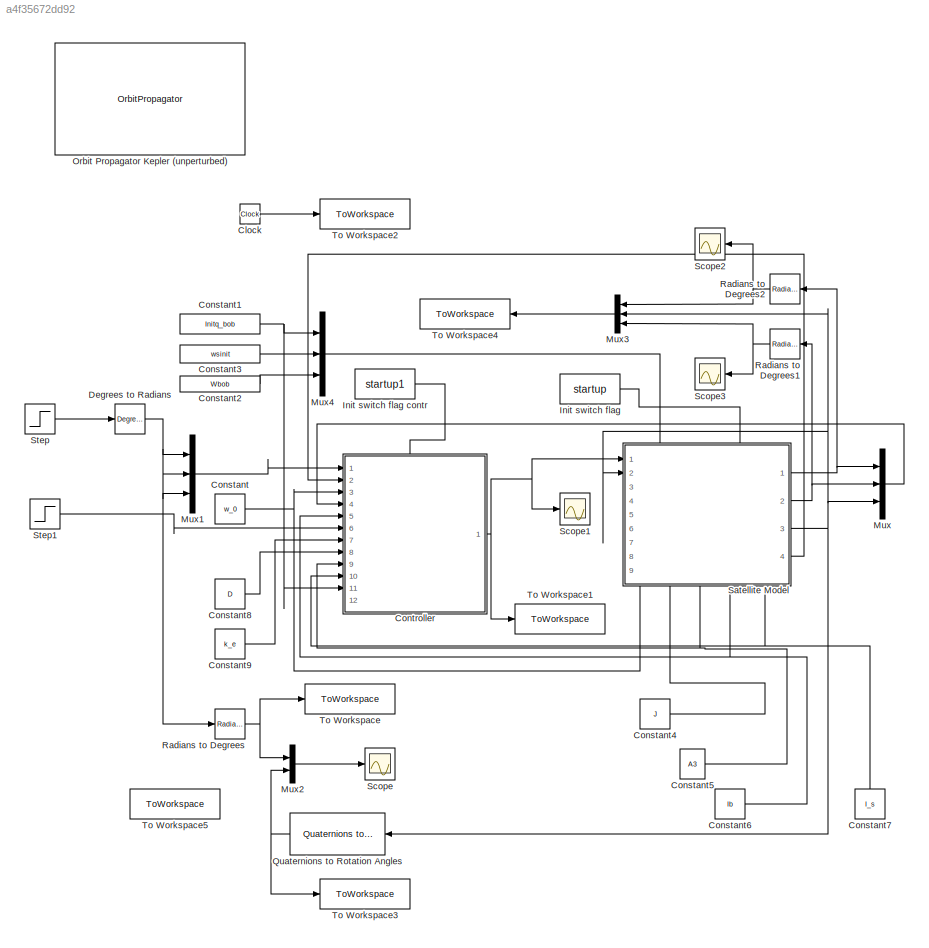
MODEL slx_a4f35672dd92
KIND model
CONFIG AbsTol = auto
CONFIG EnableMultiTasking = off
CONFIG FixedStep = auto
CONFIG MaxStep = auto
CONFIG MinStep = auto
CONFIG RelTol = 1e-3
CONFIG SampleTimeConstraint = Unconstrained
CONFIG SolverName = ode23t
CONFIG StartTime = 0.0
CONFIG StopTime = 200
BLOCK [Clock] Clock
BLOCK [Constant] Constant
  Value = w_0
BLOCK [Constant] Constant1
  Value = Initq_bob
BLOCK [Constant] Constant2
  Value = Wbob
BLOCK [Constant] Constant3
  Value = wsinit
BLOCK [Constant] Constant4
  Value = J
BLOCK [Constant] Constant5
  Value = A3
BLOCK [Constant] Constant6
  Value = Ib
BLOCK [Constant] Constant7
  NameLocation = right
  Value = I_s
BLOCK [Constant] Constant8
  Value = D
BLOCK [Constant] Constant9
  Value = k_e
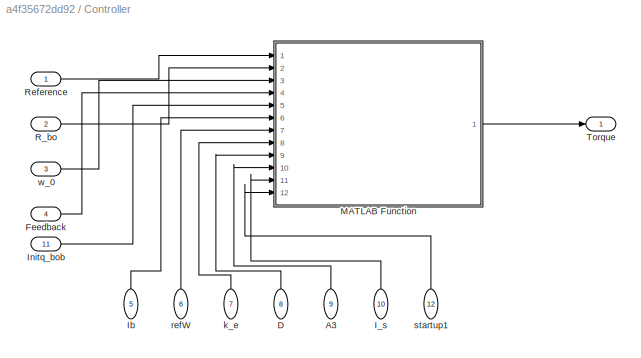
BLOCK [SubSystem] Controller
  PortSchema = {"entries":[{"content":{"sides":[{"content":{"connectorIds":["In1","In2","In3","In4","In5","In6","In7","In8","In9","In10","In11"]},"type":"ConnectorPlacement.EquallySpacedRectSide","uuid":"5590ad9e-04f9-4af7-9b4f-f6478cf6a2ce"},{"content":{"connectorIds":["Out1"],"side":"RIGHT"},"type":"ConnectorPlacement.EquallySpacedRectSide","uuid":"ce5d6df3-1bbd-4344-9f78-59de01b16bbe"},{"content":{"connectorI...<+308ch>
  Ports = [12, 1]
  RequestExecContextInheritance = off
BLOCK [Inport] Controller/A3
  NameLocation = right
  Port = 9
BLOCK [Inport] Controller/D
  NameLocation = right
  Port = 8
BLOCK [Inport] Controller/Feedback
  Port = 4
BLOCK [Inport] Controller/I_s
  NameLocation = right
  Port = 10
BLOCK [Inport] Controller/Ib
  NameLocation = right
  Port = 5
BLOCK [Inport] Controller/Initq_bob
  Port = 11
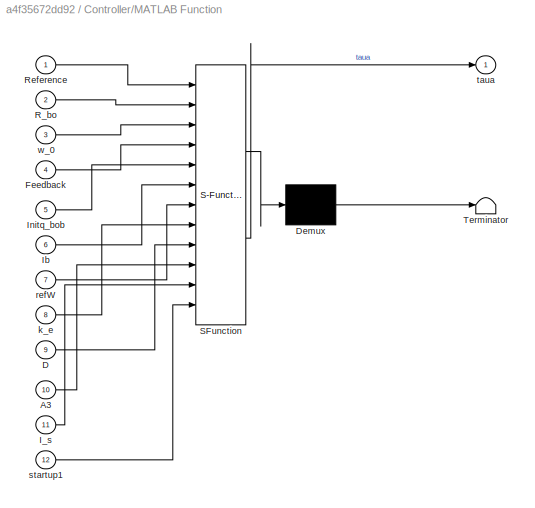
BLOCK [SubSystem] Controller/MATLAB Function
  ErrorFcn = Stateflow.Translate.translate
  PermitHierarchicalResolution = ExplicitOnly
  Ports = [12, 1]
  RequestExecContextInheritance = off
  SFBlockType = MATLAB Function
  TreatAsAtomicUnit = on
BLOCK [Demux] Controller/MATLAB Function/ Demux 
  Outputs = 1
  Ports = [1, 1]
BLOCK [S-Function] Controller/MATLAB Function/ SFunction 
  EnableBusSupport = on
  FunctionName = sf_sfun
  PortCounts = [12 2]
  Ports = [12, 2]
  SFcnIsStateOwnerBlock = off
  SFunctionDeploymentMode = off
  Tag = Stateflow S-Function 2
BLOCK [Terminator] Controller/MATLAB Function/ Terminator 
BLOCK [Inport] Controller/MATLAB Function/A3
  Port = 10
BLOCK [Inport] Controller/MATLAB Function/D
  Port = 9
BLOCK [Inport] Controller/MATLAB Function/Feedback
  Port = 4
BLOCK [Inport] Controller/MATLAB Function/I_s
  Port = 11
BLOCK [Inport] Controller/MATLAB Function/Ib
  Port = 6
BLOCK [Inport] Controller/MATLAB Function/Initq_bob
  Port = 5
BLOCK [Inport] Controller/MATLAB Function/R_bo
  Port = 2
BLOCK [Inport] Controller/MATLAB Function/Reference
BLOCK [Inport] Controller/MATLAB Function/k_e
  Port = 8
BLOCK [Inport] Controller/MATLAB Function/refW
  Port = 7
BLOCK [Inport] Controller/MATLAB Function/startup1
  Port = 12
BLOCK [Outport] Controller/MATLAB Function/taua
BLOCK [Inport] Controller/MATLAB Function/w_0
  Port = 3
BLOCK [Inport] Controller/R_bo
  Port = 2
BLOCK [Inport] Controller/Reference
BLOCK [Outport] Controller/Torque
BLOCK [Inport] Controller/k_e
  NameLocation = right
  Port = 7
BLOCK [Inport] Controller/refW
  NameLocation = right
  Port = 6
BLOCK [Inport] Controller/startup1
  NameLocation = right
  Port = 12
BLOCK [Inport] Controller/w_0
  Port = 3
BLOCK [Reference] Degrees to Radians  REF=simulink_extras/Transformations/Degrees to
Radians
  Ports = [1, 1]
  SourceBlock = simulink_extras/Transformations/Degrees to\nRadians
  SourceProductBaseCode = SL
  SourceType = DegreesToRadians
BLOCK [Constant] Init switch flag
  Value = startup
BLOCK [Constant] Init switch flag contr
  Value = startup1
BLOCK [Mux] Mux
  DisplayOption = bar
  Inputs = 3
  Ports = [3, 1]
BLOCK [Mux] Mux1
  DisplayOption = bar
  Inputs = 3
  Ports = [3, 1]
BLOCK [Mux] Mux2
  DisplayOption = bar
  Inputs = 2
  Ports = [2, 1]
BLOCK [Mux] Mux3
  DisplayOption = bar
  Inputs = 3
  NameLocation = top
  Ports = [3, 1]
BLOCK [Mux] Mux4
  DisplayOption = bar
  Inputs = 3
  Ports = [3, 1]
BLOCK [OrbitPropagator] Orbit Propagator Kepler (unperturbed)
  Ports = [0, 3]
  customJ2 = 1.0826269e-03
  customMu = 4.305e13
  customOmega = 4.06125949e-3
  customR = 3396200
  fixedPosition = [-4142689.0 -2676864.7 -4669861.6]
  fixedVelocity = [1452.7 -6720.7 2568.1]
  inertialPosition = [3649700.0 3308200.0 -4676600.0]
  inertialVelocity = [-2750.8 6666.4 2573.4]
BLOCK [Reference] Quaternions to Rotation Angles  REF=sharedtransform/Quaternions to Rotation Angles
  AttributesFormatString = Rotation Order: %<rotationOrder>
  NameLocation = top
  Ports = [1, 1]
  SourceBlock = sharedtransform/Quaternions to Rotation Angles
  SourceProductBaseCode = AE,PW,DR,MT,UV,VE
  SourceType = Quat2Ang
BLOCK [Reference] Radians to Degrees  REF=simulink_extras/Transformations/Radians
to Degrees
  Ports = [1, 1]
  SourceBlock = simulink_extras/Transformations/Radians\nto Degrees
  SourceProductBaseCode = SL
  SourceType = RadiansToDegrees
BLOCK [Reference] Radians to Degrees1  REF=simulink_extras/Transformations/Radians
to Degrees
  NameLocation = top
  Ports = [1, 1]
  SourceBlock = simulink_extras/Transformations/Radians\nto Degrees
  SourceProductBaseCode = SL
  SourceType = RadiansToDegrees
BLOCK [Reference] Radians to Degrees2  REF=simulink_extras/Transformations/Radians
to Degrees
  NameLocation = top
  Ports = [1, 1]
  SourceBlock = simulink_extras/Transformations/Radians\nto Degrees
  SourceProductBaseCode = SL
  SourceType = RadiansToDegrees
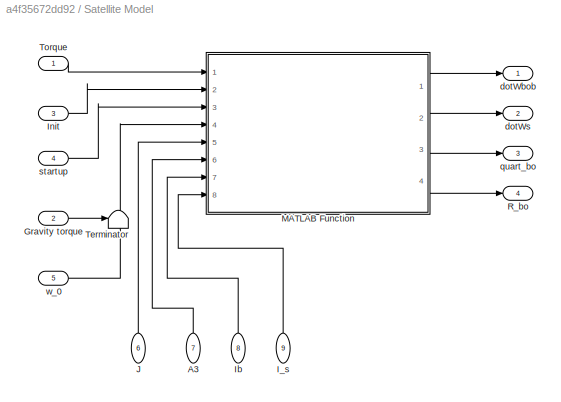
BLOCK [SubSystem] Satellite Model
  PortSchema = {"entries":[{"content":{"sides":[{"content":{"connectorIds":["In1","In2"]},"type":"ConnectorPlacement.EquallySpacedRectSide","uuid":"ed600d3a-bd99-4e9e-b304-9a2a6bbc0ab4"},{"content":{"connectorIds":["Out1","Out2","Out3","Out4"],"side":"RIGHT"},"type":"ConnectorPlacement.EquallySpacedRectSide","uuid":"702358d8-c789-483d-bed3-4e4bb7a14f25"},{"content":{"connectorIds":["In3","In4"],"side":"TOP"},"ty...<+451ch>
  Ports = [9, 4]
  RequestExecContextInheritance = off
BLOCK [Inport] Satellite Model/A3
  NameLocation = right
  Port = 7
BLOCK [Inport] Satellite Model/Gravity torque
  Port = 2
BLOCK [Inport] Satellite Model/I_s
  NameLocation = right
  Port = 9
BLOCK [Inport] Satellite Model/Ib
  NameLocation = right
  Port = 8
BLOCK [Inport] Satellite Model/Init
  Port = 3
BLOCK [Inport] Satellite Model/J
  NameLocation = right
  Port = 6
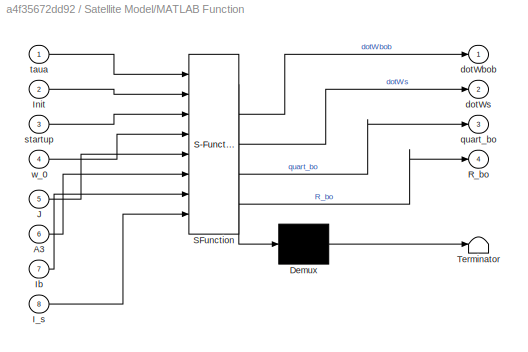
BLOCK [SubSystem] Satellite Model/MATLAB Function
  ErrorFcn = Stateflow.Translate.translate
  PermitHierarchicalResolution = ExplicitOnly
  Ports = [8, 4]
  RequestExecContextInheritance = off
  SFBlockType = MATLAB Function
  TreatAsAtomicUnit = on
BLOCK [Demux] Satellite Model/MATLAB Function/ Demux 
  Outputs = 1
  Ports = [1, 1]
BLOCK [S-Function] Satellite Model/MATLAB Function/ SFunction 
  EnableBusSupport = on
  FunctionName = sf_sfun
  PortCounts = [8 5]
  Ports = [8, 5]
  SFcnIsStateOwnerBlock = off
  SFunctionDeploymentMode = off
  Tag = Stateflow S-Function 1
BLOCK [Terminator] Satellite Model/MATLAB Function/ Terminator 
BLOCK [Inport] Satellite Model/MATLAB Function/A3
  Port = 6
BLOCK [Inport] Satellite Model/MATLAB Function/I_s
  Port = 8
BLOCK [Inport] Satellite Model/MATLAB Function/Ib
  Port = 7
BLOCK [Inport] Satellite Model/MATLAB Function/Init
  Port = 2
BLOCK [Inport] Satellite Model/MATLAB Function/J
  Port = 5
BLOCK [Outport] Satellite Model/MATLAB Function/R_bo
  Port = 4
BLOCK [Outport] Satellite Model/MATLAB Function/dotWbob
BLOCK [Outport] Satellite Model/MATLAB Function/dotWs
  Port = 2
BLOCK [Outport] Satellite Model/MATLAB Function/quart_bo
  Port = 3
BLOCK [Inport] Satellite Model/MATLAB Function/startup
  Port = 3
BLOCK [Inport] Satellite Model/MATLAB Function/taua
BLOCK [Inport] Satellite Model/MATLAB Function/w_0
  Port = 4
BLOCK [Outport] Satellite Model/R_bo
  Port = 4
BLOCK [Terminator] Satellite Model/Terminator
BLOCK [Inport] Satellite Model/Torque
BLOCK [Outport] Satellite Model/dotWbob
BLOCK [Outport] Satellite Model/dotWs
  Port = 2
BLOCK [Outport] Satellite Model/quart_bo
  Port = 3
BLOCK [Inport] Satellite Model/startup
  Port = 4
BLOCK [Inport] Satellite Model/w_0
  Port = 5
BLOCK [Scope] Scope
  Floating = off
  NumInputPorts = 1
  Ports = [1]
  ScopeSpecificationString = Simulink.scopes.TimeScopeBlockCfg('CurrentConfiguration', extmgr.ConfigurationSet(extmgr.Configuration('Core','General UI',true),extmgr.Configuration('Core','Source UI',true),extmgr.Configuration('Sources','WiredSimulink',true),extmgr.Configuration('Visuals','Time Domain',true),extmgr.Configuration('Tools','Plot Navigation',true),extmgr.Configuration('Tools','Measurements',true)),'Version','2021b'...<+1ch>
BLOCK [Scope] Scope1
  Floating = off
  NumInputPorts = 1
  Ports = [1]
  ScopeSpecificationString = Simulink.scopes.TimeScopeBlockCfg('CurrentConfiguration', extmgr.ConfigurationSet(extmgr.Configuration('Core','General UI',true),extmgr.Configuration('Core','Source UI',true),extmgr.Configuration('Sources','WiredSimulink',true,'DataLoggingVariableName','ScopeData1'),extmgr.Configuration('Visuals','Time Domain',true),extmgr.Configuration('Tools','Plot Navigation',true),extmgr.Configuration('Tools',...<+58ch>
BLOCK [Scope] Scope2
  Floating = off
  NameLocation = top
  NumInputPorts = 1
  Ports = [1]
  ScopeSpecificationString = Simulink.scopes.TimeScopeBlockCfg('CurrentConfiguration', extmgr.ConfigurationSet(extmgr.Configuration('Core','General UI',true),extmgr.Configuration('Core','Source UI',true),extmgr.Configuration('Sources','WiredSimulink',true,'DataLoggingVariableName','ScopeData2'),extmgr.Configuration('Visuals','Time Domain',true),extmgr.Configuration('Tools','Plot Navigation',true),extmgr.Configuration('Tools',...<+40ch>
BLOCK [Scope] Scope3
  Floating = off
  NameLocation = top
  NumInputPorts = 1
  Ports = [1]
  ScopeSpecificationString = Simulink.scopes.TimeScopeBlockCfg('CurrentConfiguration', extmgr.ConfigurationSet(extmgr.Configuration('Core','General UI',true),extmgr.Configuration('Core','Source UI',true),extmgr.Configuration('Sources','WiredSimulink',true,'DataLoggingVariableName','ScopeData3'),extmgr.Configuration('Visuals','Time Domain',true),extmgr.Configuration('Tools','Plot Navigation',true),extmgr.Configuration('Tools',...<+40ch>
BLOCK [Step] Step
  After = 60
  SampleTime = 0
  Time = 0
BLOCK [Step] Step1
  After = [1; 2; 3]
  SampleTime = 0
BLOCK [ToWorkspace] To Workspace
  FixptAsFi = on
  MaxDataPoints = inf
  Ports = [1]
  SampleTime = -1
  VariableName = reference
BLOCK [ToWorkspace] To Workspace1
  FixptAsFi = on
  MaxDataPoints = inf
  Ports = [1]
  SampleTime = -1
  VariableName = Torque
BLOCK [ToWorkspace] To Workspace2
  FixptAsFi = on
  MaxDataPoints = inf
  Ports = [1]
  SampleTime = -1
  VariableName = time
BLOCK [ToWorkspace] To Workspace3
  FixptAsFi = on
  MaxDataPoints = inf
  Ports = [1]
  SampleTime = -1
  VariableName = EulerAngles
BLOCK [ToWorkspace] To Workspace4
  FixptAsFi = on
  MaxDataPoints = inf
  NameLocation = top
  Ports = [1]
  SampleTime = -1
  SaveFormat = Timeseries
  VariableName = SatelliteStates
BLOCK [ToWorkspace] To Workspace5
  FixptAsFi = on
  MaxDataPoints = inf
  Ports = [1]
  SampleTime = -1
  SaveFormat = Timeseries
  VariableName = simout
LINE Clock:1 -> To Workspace2:1
NET Constant1:1 -> Controller:11, Mux4:1
LINE Constant2:1 -> Mux4:3
LINE Constant3:1 -> Mux4:2
LINE Constant4:1 -> Satellite Model:6
NET Constant5:1 -> Controller:9, Satellite Model:7
NET Constant6:1 -> Controller:5, Satellite Model:8
NET Constant7:1 -> Controller:10, Satellite Model:9
LINE Constant8:1 -> Controller:8
LINE Constant9:1 -> Controller:7
NET Constant:1 -> Controller:3, Satellite Model:5
LINE Controller/A3:1 -> Controller/MATLAB Function:10
LINE Controller/D:1 -> Controller/MATLAB Function:9
LINE Controller/Feedback:1 -> Controller/MATLAB Function:4
LINE Controller/I_s:1 -> Controller/MATLAB Function:11
LINE Controller/Ib:1 -> Controller/MATLAB Function:6
LINE Controller/Initq_bob:1 -> Controller/MATLAB Function:5
LINE Controller/MATLAB Function:1 -> Controller/Torque:1
LINE Controller/R_bo:1 -> Controller/MATLAB Function:2
LINE Controller/Reference:1 -> Controller/MATLAB Function:1
LINE Controller/k_e:1 -> Controller/MATLAB Function:8
LINE Controller/refW:1 -> Controller/MATLAB Function:7
LINE Controller/startup1:1 -> Controller/MATLAB Function:12
LINE Controller/w_0:1 -> Controller/MATLAB Function:3
NET Controller:1 -> Satellite Model:1, Scope1:1, To Workspace1:1
NET Degrees to Radians:1 -> Mux1:1, Mux1:2, Mux1:3, Radians to Degrees:1
LINE Init switch flag contr:1 -> Controller:12
LINE Init switch flag:1 -> Satellite Model:4
LINE Mux1:1 -> Controller:1
LINE Mux2:1 -> Scope:1
LINE Mux3:1 -> To Workspace4:1
LINE Mux4:1 -> Satellite Model:3
LINE Mux:1 -> Controller:4
NET Quaternions to Rotation Angles:1 -> Mux2:2, To Workspace3:1
NET Radians to Degrees1:1 -> Mux3:3, Scope3:1
NET Radians to Degrees2:1 -> Mux3:1, Scope2:1
NET Radians to Degrees:1 -> Mux2:1, To Workspace:1
LINE Satellite Model/A3:1 -> Satellite Model/MATLAB Function:6
LINE Satellite Model/Gravity torque:1 -> Satellite Model/Terminator:1
LINE Satellite Model/I_s:1 -> Satellite Model/MATLAB Function:8
LINE Satellite Model/Ib:1 -> Satellite Model/MATLAB Function:7
LINE Satellite Model/Init:1 -> Satellite Model/MATLAB Function:2
LINE Satellite Model/J:1 -> Satellite Model/MATLAB Function:5
LINE Satellite Model/MATLAB Function:1 -> Satellite Model/dotWbob:1
LINE Satellite Model/MATLAB Function:2 -> Satellite Model/dotWs:1
LINE Satellite Model/MATLAB Function:3 -> Satellite Model/quart_bo:1
LINE Satellite Model/MATLAB Function:4 -> Satellite Model/R_bo:1
LINE Satellite Model/Torque:1 -> Satellite Model/MATLAB Function:1
LINE Satellite Model/startup:1 -> Satellite Model/MATLAB Function:3
LINE Satellite Model/w_0:1 -> Satellite Model/MATLAB Function:4
NET Satellite Model:1 -> Mux:1, Radians to Degrees2:1
NET Satellite Model:2 -> Mux:2, Radians to Degrees1:1
NET Satellite Model:3 -> Mux3:2, Mux:3, Quaternions to Rotation Angles:1, Satellite Model:2
LINE Satellite Model:4 -> Controller:2
LINE Step1:1 -> Controller:6
LINE Step:1 -> Degrees to Radians:1
note: NET lines group one-source signal fan-out (src -> all destinations, sorted); 1:1 wires keep LINE
CHART Satellite Model/MATLAB Function states=1 transitions=1
  STATE_LABEL 'eML_blk_kernel()'
  STATE_LABEL 'SCRIPT:\nfunction [dotWbob,dotWs,quart_bo,R_bo] = SystemNonlinearModel(taua,Init,startup,w_0,J,A3,Ib,I_s)\n% Function that calculates the system states\n%   This system function receives initializing input parameters and control\n%   signals and calculates the components of the ordinal differential\n%   equations of each state.\n\nquaternions = zeros(1,4);\nAngVel = zeros(3,1);\nWAngVel = zeros(3,1);\nInitq...<+2343ch>'
CHART Controller/MATLAB Function states=1 transitions=1
  STATE_LABEL 'eML_blk_kernel()'
  STATE_LABEL 'SCRIPT:\nfunction taua = LyapunovController1(Reference, R_bo, w_0, Feedback, Initq_bob, Ib, refW, k_e, D, A3, I_s, startup1)\n\n%Lyapunov controller function \n%   Control strategy based on a Lyapunov function candidate. The core idea\n%   is that the reaction wheel angular velocity is interpreted as an\n%   external control input and is therefore not included in the statespace\n%   of the system.\nif(sta...<+1482ch>'
CHART  states=0 transitions=0
CHART  states=0 transitions=0
